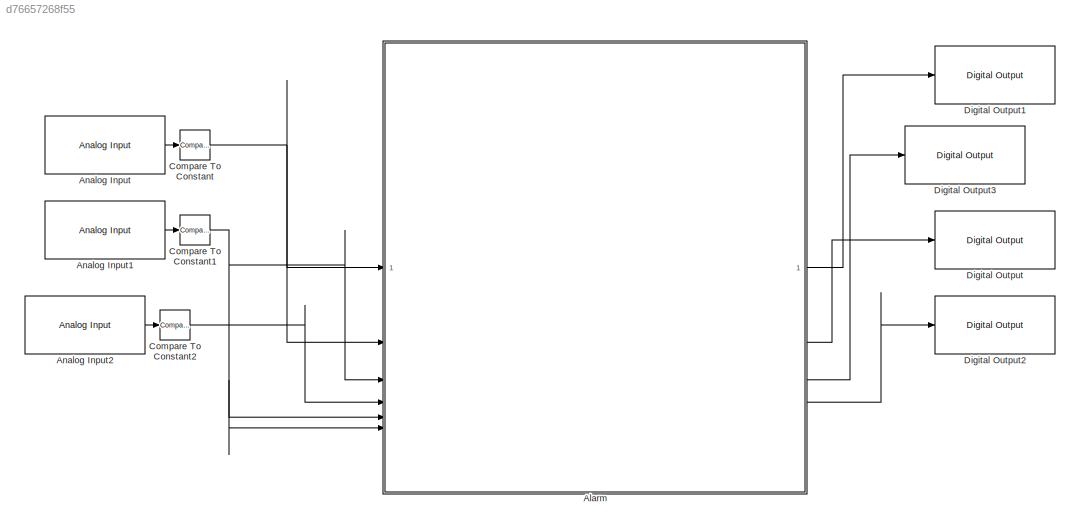
MODEL slx_d76657268f55
KIND model
CONFIG AbsTol = auto
CONFIG EnableMultiTasking = off
CONFIG FixedStep = 0.01
CONFIG MaxStep = auto
CONFIG MinStep = auto
CONFIG RelTol = 1e-3
CONFIG SampleTimeConstraint = Unconstrained
CONFIG SolverName = FixedStepAuto
CONFIG StartTime = 0.0
CONFIG StopTime = 10.0
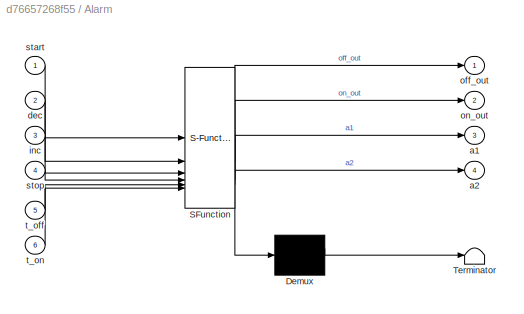
BLOCK [SubSystem] Alarm
  ErrorFcn = Stateflow.Translate.translate
  PermitHierarchicalResolution = ExplicitOnly
  PortSchema = {"entries":[{"content":{"sides":[{"content":{"connectorIds":["In1","In2","In3","In4","In5","In6"]},"type":"ConnectorPlacement.EquallySpacedRectSide","uuid":"67fa7592-dd5f-473b-adb5-31a8a36dc656"},{"content":{"connectorIds":["Out1","Out3","Out2","Out4"],"side":"RIGHT"},"type":"ConnectorPlacement.EquallySpacedRectSide","uuid":"ab42aef1-4252-4a8b-8856-fd08774fb9b6"},{"content":{"side":"TOP"},"type":"...<+273ch>
  SFBlockType = Chart
  TreatAsAtomicUnit = on
BLOCK [Demux] Alarm/ Demux 
  Outputs = 1
BLOCK [S-Function] Alarm/ SFunction 
  EnableBusSupport = on
  FunctionName = sf_sfun
  PortCounts = [6 5]
  SFcnIsStateOwnerBlock = off
  SFunctionDeploymentMode = off
  Tag = Stateflow S-Function 3
BLOCK [Terminator] Alarm/ Terminator 
BLOCK [Outport] Alarm/a1
  Port = 3
BLOCK [Outport] Alarm/a2
  Port = 4
BLOCK [Inport] Alarm/dec
  Port = 2
BLOCK [Inport] Alarm/inc
  Port = 3
BLOCK [Outport] Alarm/off_out
BLOCK [Outport] Alarm/on_out
  Port = 2
BLOCK [Inport] Alarm/start
BLOCK [Inport] Alarm/stop
  Port = 4
BLOCK [Inport] Alarm/t_off
  Port = 5
BLOCK [Inport] Alarm/t_on
  Port = 6
BLOCK [Reference] Analog Input  REF=arduinolib/Analog Input
  SourceBlock = arduinolib/Analog Input
  SourceType = Arduino Analog Input
BLOCK [Reference] Analog Input1  REF=arduinolib/Analog Input
  SourceBlock = arduinolib/Analog Input
  SourceType = Arduino Analog Input
BLOCK [Reference] Analog Input2  REF=arduinolib/Analog Input
  SourceBlock = arduinolib/Analog Input
  SourceType = Arduino Analog Input
BLOCK [Reference] Compare To Constant  REF=simulink/Logic and Bit
Operations/Compare
To Constant
  SourceBlock = simulink/Logic and Bit\nOperations/Compare\nTo Constant
  SourceType = Compare To Constant
BLOCK [Reference] Compare To Constant1  REF=simulink/Logic and Bit
Operations/Compare
To Constant
  SourceBlock = simulink/Logic and Bit\nOperations/Compare\nTo Constant
  SourceType = Compare To Constant
BLOCK [Reference] Compare To Constant2  REF=simulink/Logic and Bit
Operations/Compare
To Constant
  SourceBlock = simulink/Logic and Bit\nOperations/Compare\nTo Constant
  SourceType = Compare To Constant
BLOCK [Reference] Digital Output  REF=arduinolib/Digital Output
  SourceBlock = arduinolib/Digital Output
  SourceType = Arduino Digital Output
BLOCK [Reference] Digital Output1  REF=arduinolib/Digital Output
  SourceBlock = arduinolib/Digital Output
  SourceType = Arduino Digital Output
BLOCK [Reference] Digital Output2  REF=arduinolib/Digital Output
  SourceBlock = arduinolib/Digital Output
  SourceType = Arduino Digital Output
BLOCK [Reference] Digital Output3  REF=arduinolib/Digital Output
  SourceBlock = arduinolib/Digital Output
  SourceType = Arduino Digital Output
LINE Alarm:1 -> Digital Output1:1
LINE Alarm:2 -> Digital Output:1
LINE Alarm:3 -> Digital Output3:1
LINE Alarm:4 -> Digital Output2:1
LINE Analog Input1:1 -> Compare To Constant1:1
LINE Analog Input2:1 -> Compare To Constant2:1
LINE Analog Input:1 -> Compare To Constant:1
NET Compare To Constant1:1 -> Alarm:3, Alarm:5, Alarm:6
LINE Compare To Constant2:1 -> Alarm:4
NET Compare To Constant:1 -> Alarm:1, Alarm:2
note: NET lines group one-source signal fan-out (src -> all destinations, sorted); 1:1 wires keep LINE
CHART Alarm states=8 transitions=10
  STATE_LABEL 'Shutdown'
  STATE_LABEL 'OP'
  STATE_LABEL 'Vol'
  STATE_LABEL 'One\nentry:a1 = true;\nexit: a1 = false;'
  STATE_LABEL 'Two\nentry: a2 = true;\nexit: a2 = false;'
  STATE_LABEL '[inc==true]'
  STATE_LABEL '[dec==true]'
  STATE_LABEL 'Mode'
  STATE_LABEL 'ON\nentry:\non_out = true;\nexit: on_out =false;\n'
  STATE_LABEL 'Off\nentry:\noff_out = true;\nexit: off_out = false;'
  STATE_LABEL '[t_on==true]'
  STATE_LABEL '[t_off==true]'
  STATE_LABEL 'Vol'
  STATE_LABEL 'One\nentry:a1 = true;\nexit: a1 = false;'
  STATE_LABEL 'Two\nentry: a2 = true;\nexit: a2 = false;'
  STATE_LABEL '[inc==true]'
  STATE_LABEL '[dec==true]'
  STATE_LABEL 'One\nentry:a1 = true;\nexit: a1 = false;'
  STATE_LABEL 'Two\nentry: a2 = true;\nexit: a2 = false;'
  STATE_LABEL 'Mode'
  STATE_LABEL 'ON\nentry:\non_out = true;\nexit: on_out =false;\n'
  STATE_LABEL 'Off\nentry:\noff_out = true;\nexit: off_out = false;'
  STATE_LABEL '[t_on==true]'
  STATE_LABEL '[t_off==true]'
  STATE_LABEL 'ON\nentry:\non_out = true;\nexit: on_out =false;\n'
  STATE_LABEL 'Off\nentry:\noff_out = true;\nexit: off_out = false;'
CHART  states=0 transitions=0
